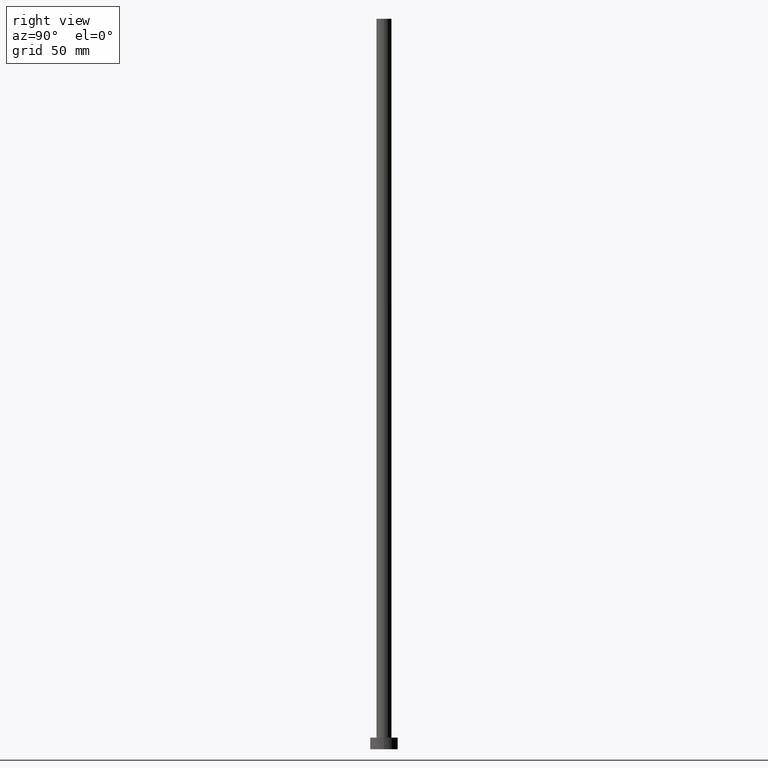
[diagram: clean part render]
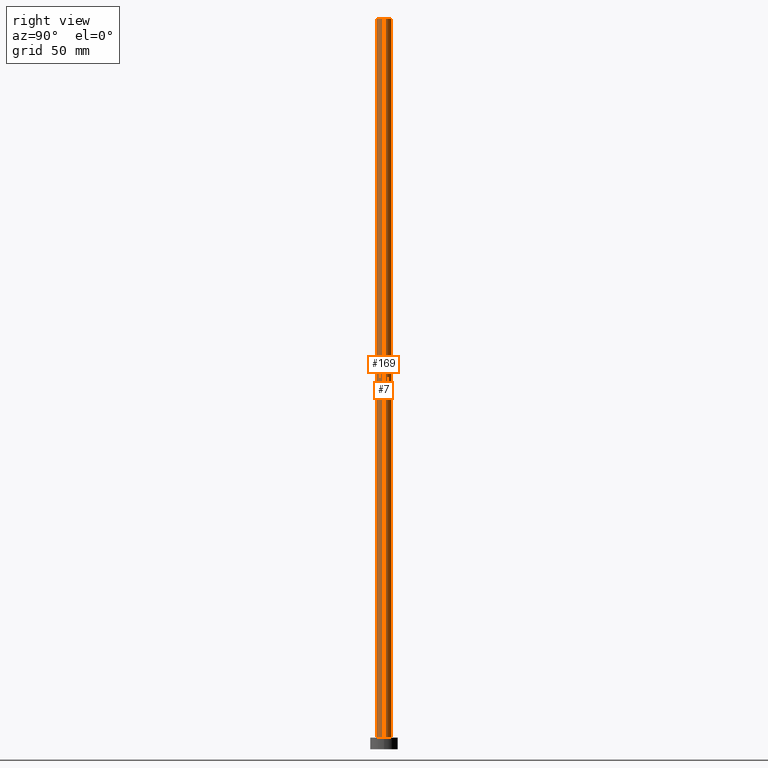
[diagram: same view with one multi-face feature highlighted, each face labeled with its STEP entity id]
A machine part, right view. The highlighted faces form ONE feature: a constant-radius fillet chain: 2 tangent blend faces with common blend radius 3.25 mm. The faces share edges in the B-rep.
Their STEP definitions:
[1] entity #7 (Cylinder):
#7 = ADVANCED_FACE ( 'NONE', ( #84 ), #67, .T. ) ;
#8 = CARTESIAN_POINT ( 'NONE',  ( 3.250000000000000444, 3.980102097228898231E-16, 315.0000000000000000 ) ) ;
#22 = AXIS2_PLACEMENT_3D ( 'NONE', #158, #161, #25 ) ;
#25 = DIRECTION ( 'NONE',  ( 1.000000000000000000, 0.000000000000000000, 0.000000000000000000 ) ) ;
#32 = DIRECTION ( 'NONE',  ( -0.000000000000000000, -0.000000000000000000, -1.000000000000000000 ) ) ;
#38 = ORIENTED_EDGE ( 'NONE', *, *, #235, .F. ) ;
#41 = DIRECTION ( 'NONE',  ( -0.000000000000000000, -0.000000000000000000, -1.000000000000000000 ) ) ;
#42 = VECTOR ( 'NONE', #41, 1000.000000000000000 ) ;
#47 = VERTEX_POINT ( 'NONE', #51 ) ;
#51 = CARTESIAN_POINT ( 'NONE',  ( -3.250000000000000444, 0.000000000000000000, 5.000000000000000000 ) ) ;
#65 = LINE ( 'NONE', #98, #42 ) ;
#67 = CYLINDRICAL_SURFACE ( 'NONE', #239, 3.250000000000000444 ) ;
#72 = ORIENTED_EDGE ( 'NONE', *, *, #164, .T. ) ;
#84 = FACE_OUTER_BOUND ( 'NONE', #171, .T. ) ;
#87 = CIRCLE ( 'NONE', #130, 3.250000000000000444 ) ;
#89 = LINE ( 'NONE', #128, #173 ) ;
#91 = EDGE_CURVE ( 'NONE', #209, #47, #89, .T. ) ;
#98 = CARTESIAN_POINT ( 'NONE',  ( 3.250000000000000444, 3.980102097228898231E-16, 315.0000000000000000 ) ) ;
#100 = DIRECTION ( 'NONE',  ( -1.000000000000000000, 0.000000000000000000, 0.000000000000000000 ) ) ;
#107 = ORIENTED_EDGE ( 'NONE', *, *, #91, .F. ) ;
#120 = CARTESIAN_POINT ( 'NONE',  ( -3.250000000000000444, 0.000000000000000000, 315.0000000000000000 ) ) ;
#125 = CARTESIAN_POINT ( 'NONE',  ( 0.000000000000000000, 0.000000000000000000, 315.0000000000000000 ) ) ;
#128 = CARTESIAN_POINT ( 'NONE',  ( -3.250000000000000444, 0.000000000000000000, 315.0000000000000000 ) ) ;
#129 = VERTEX_POINT ( 'NONE', #8 ) ;
#130 = AXIS2_PLACEMENT_3D ( 'NONE', #140, #253, #154 ) ;
#136 = ORIENTED_EDGE ( 'NONE', *, *, #202, .T. ) ;
#140 = CARTESIAN_POINT ( 'NONE',  ( 0.000000000000000000, 0.000000000000000000, 315.0000000000000000 ) ) ;
#142 = DIRECTION ( 'NONE',  ( -0.000000000000000000, -0.000000000000000000, -1.000000000000000000 ) ) ;
#154 = DIRECTION ( 'NONE',  ( 1.000000000000000000, 0.000000000000000000, 0.000000000000000000 ) ) ;
#158 = CARTESIAN_POINT ( 'NONE',  ( 0.000000000000000000, 0.000000000000000000, 5.000000000000000000 ) ) ;
#161 = DIRECTION ( 'NONE',  ( 0.000000000000000000, 0.000000000000000000, 1.000000000000000000 ) ) ;
#164 = EDGE_CURVE ( 'NONE', #215, #47, #179, .T. ) ;
#171 = EDGE_LOOP ( 'NONE', ( #38, #136, #72, #107 ) ) ;
#173 = VECTOR ( 'NONE', #32, 1000.000000000000000 ) ;
#175 = CARTESIAN_POINT ( 'NONE',  ( 3.250000000000000444, 3.980102097228898231E-16, 5.000000000000000000 ) ) ;
#179 = CIRCLE ( 'NONE', #22, 3.250000000000000444 ) ;
#202 = EDGE_CURVE ( 'NONE', #129, #215, #65, .T. ) ;
#209 = VERTEX_POINT ( 'NONE', #120 ) ;
#215 = VERTEX_POINT ( 'NONE', #175 ) ;
#235 = EDGE_CURVE ( 'NONE', #129, #209, #87, .T. ) ;
#239 = AXIS2_PLACEMENT_3D ( 'NONE', #125, #142, #100 ) ;
#253 = DIRECTION ( 'NONE',  ( 0.000000000000000000, 0.000000000000000000, 1.000000000000000000 ) ) ;
[2] entity #169 (Cylinder):
#8 = CARTESIAN_POINT ( 'NONE',  ( 3.250000000000000444, 3.980102097228898231E-16, 315.0000000000000000 ) ) ;
#18 = DIRECTION ( 'NONE',  ( -0.000000000000000000, -0.000000000000000000, -1.000000000000000000 ) ) ;
#20 = ORIENTED_EDGE ( 'NONE', *, *, #218, .T. ) ;
#21 = AXIS2_PLACEMENT_3D ( 'NONE', #102, #198, #216 ) ;
#23 = FACE_OUTER_BOUND ( 'NONE', #60, .T. ) ;
#32 = DIRECTION ( 'NONE',  ( -0.000000000000000000, -0.000000000000000000, -1.000000000000000000 ) ) ;
#37 = CYLINDRICAL_SURFACE ( 'NONE', #163, 3.250000000000000444 ) ;
#41 = DIRECTION ( 'NONE',  ( -0.000000000000000000, -0.000000000000000000, -1.000000000000000000 ) ) ;
#42 = VECTOR ( 'NONE', #41, 1000.000000000000000 ) ;
#47 = VERTEX_POINT ( 'NONE', #51 ) ;
#51 = CARTESIAN_POINT ( 'NONE',  ( -3.250000000000000444, 0.000000000000000000, 5.000000000000000000 ) ) ;
#52 = ORIENTED_EDGE ( 'NONE', *, *, #202, .F. ) ;
#60 = EDGE_LOOP ( 'NONE', ( #52, #251, #95, #20 ) ) ;
#63 = CARTESIAN_POINT ( 'NONE',  ( 0.000000000000000000, 0.000000000000000000, 5.000000000000000000 ) ) ;
#65 = LINE ( 'NONE', #98, #42 ) ;
#76 = DIRECTION ( 'NONE',  ( -1.000000000000000000, 0.000000000000000000, 0.000000000000000000 ) ) ;
#89 = LINE ( 'NONE', #128, #173 ) ;
#91 = EDGE_CURVE ( 'NONE', #209, #47, #89, .T. ) ;
#95 = ORIENTED_EDGE ( 'NONE', *, *, #91, .T. ) ;
#98 = CARTESIAN_POINT ( 'NONE',  ( 3.250000000000000444, 3.980102097228898231E-16, 315.0000000000000000 ) ) ;
#101 = DIRECTION ( 'NONE',  ( 1.000000000000000000, 0.000000000000000000, 0.000000000000000000 ) ) ;
#102 = CARTESIAN_POINT ( 'NONE',  ( 0.000000000000000000, 0.000000000000000000, 315.0000000000000000 ) ) ;
#120 = CARTESIAN_POINT ( 'NONE',  ( -3.250000000000000444, 0.000000000000000000, 315.0000000000000000 ) ) ;
#128 = CARTESIAN_POINT ( 'NONE',  ( -3.250000000000000444, 0.000000000000000000, 315.0000000000000000 ) ) ;
#129 = VERTEX_POINT ( 'NONE', #8 ) ;
#138 = CARTESIAN_POINT ( 'NONE',  ( 0.000000000000000000, 0.000000000000000000, 315.0000000000000000 ) ) ;
#163 = AXIS2_PLACEMENT_3D ( 'NONE', #138, #18, #76 ) ;
#169 = ADVANCED_FACE ( 'NONE', ( #23 ), #37, .T. ) ;
#173 = VECTOR ( 'NONE', #32, 1000.000000000000000 ) ;
#175 = CARTESIAN_POINT ( 'NONE',  ( 3.250000000000000444, 3.980102097228898231E-16, 5.000000000000000000 ) ) ;
#198 = DIRECTION ( 'NONE',  ( 0.000000000000000000, 0.000000000000000000, 1.000000000000000000 ) ) ;
#200 = CIRCLE ( 'NONE', #21, 3.250000000000000444 ) ;
#202 = EDGE_CURVE ( 'NONE', #129, #215, #65, .T. ) ;
#209 = VERTEX_POINT ( 'NONE', #120 ) ;
#212 = EDGE_CURVE ( 'NONE', #209, #129, #200, .T. ) ;
#215 = VERTEX_POINT ( 'NONE', #175 ) ;
#216 = DIRECTION ( 'NONE',  ( 1.000000000000000000, 0.000000000000000000, 0.000000000000000000 ) ) ;
#218 = EDGE_CURVE ( 'NONE', #47, #215, #250, .T. ) ;
#232 = DIRECTION ( 'NONE',  ( 0.000000000000000000, 0.000000000000000000, 1.000000000000000000 ) ) ;
#243 = AXIS2_PLACEMENT_3D ( 'NONE', #63, #232, #101 ) ;
#250 = CIRCLE ( 'NONE', #243, 3.250000000000000444 ) ;
#251 = ORIENTED_EDGE ( 'NONE', *, *, #212, .F. ) ;